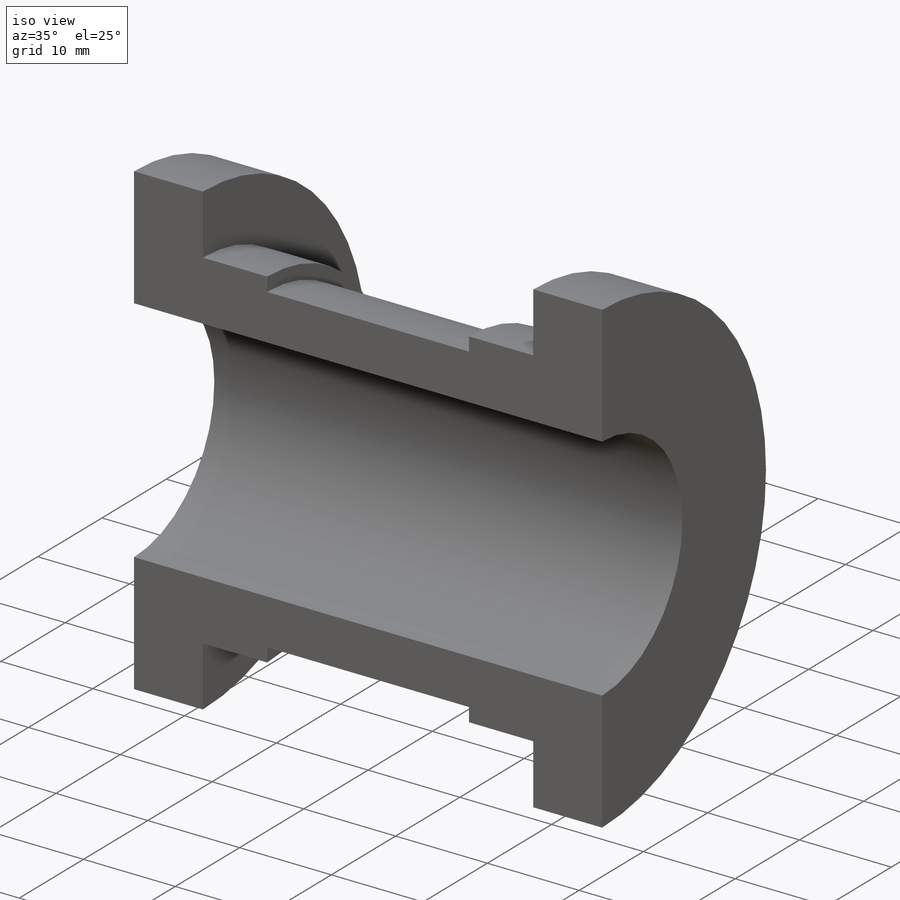
[diagram: iso view]
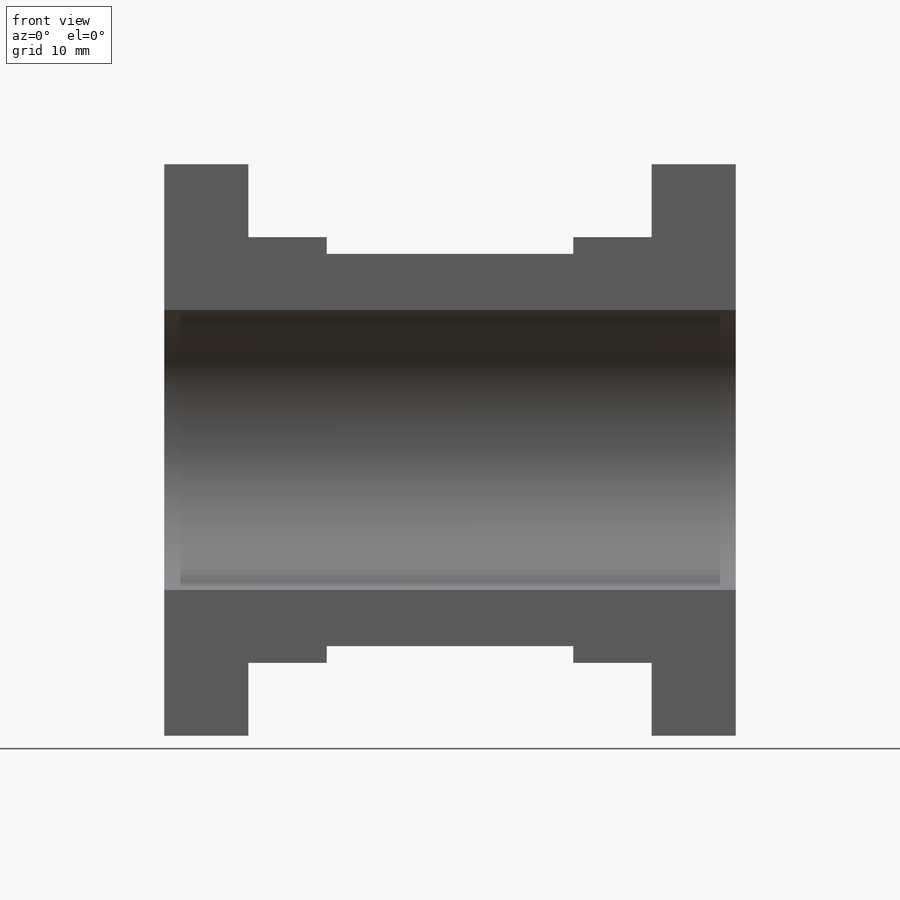
[diagram: front view]
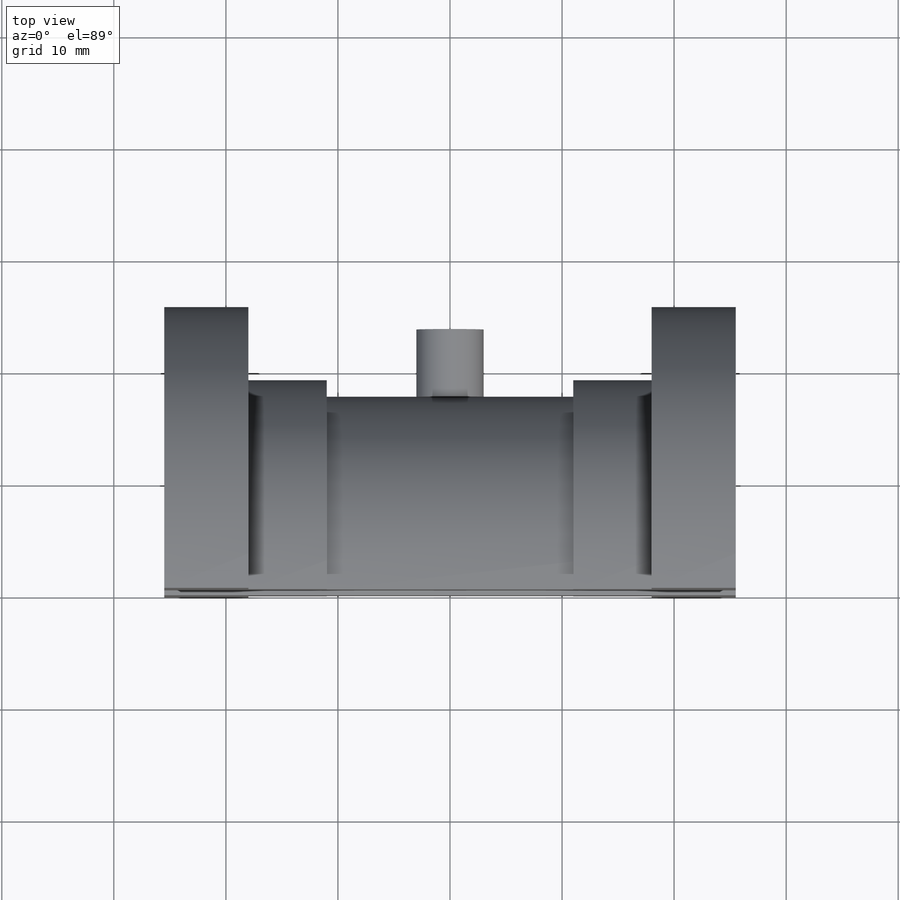
[diagram: top view]
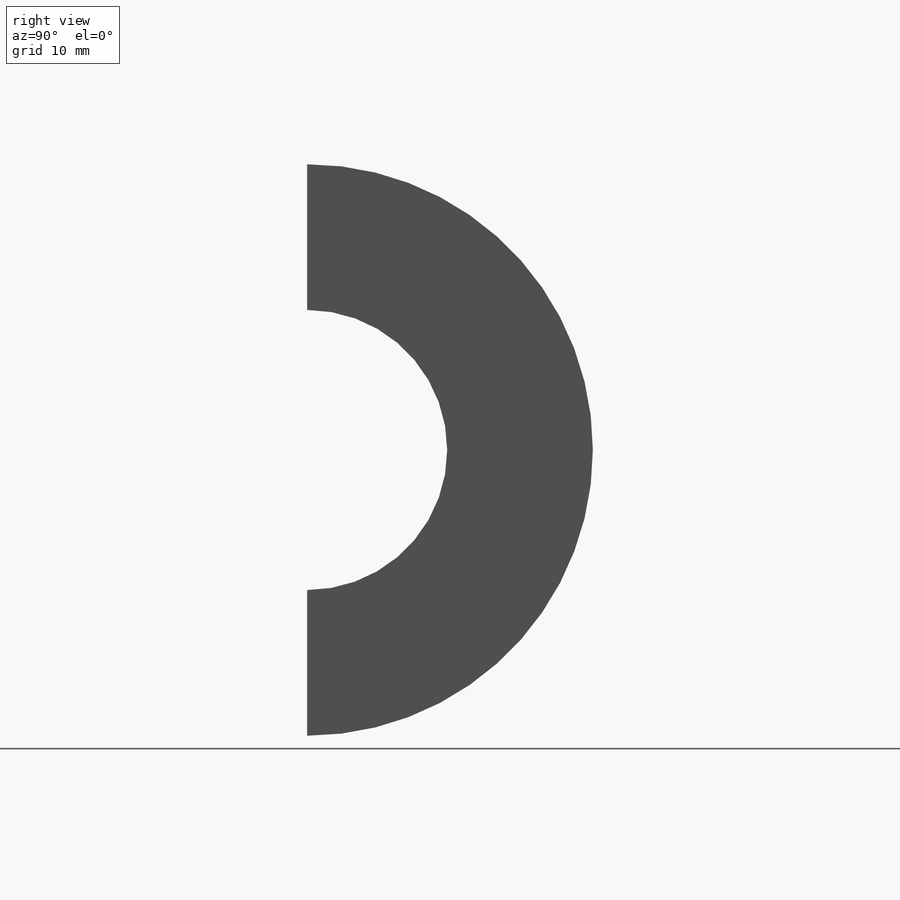
[diagram: right view]
SOLIDWORKS PART (.sldprt)
format: sldprt  version: not decoded by parser v0  size: 184,320 bytes
history: native  units: mm
features: sketch x3, material x1, revolve x1, cut_extrude x1, plane x1, extrude x1 (+12 scaffold rows collapsed)
feature tree (20):
  scaffold x12  (default folders/planes/origin — collapsed)
  material  "Material <not specified>"
  sketch  "Sketch1"  dims[c1.D1=26.5mm c1.D2=19.0mm c1.D3=17.5mm c1.D4=6.0mm c1.D5=3.0mm c1.D6=~21.764113mm c1.D7=~8.270363mm c1.D8=~16.540726mm c1.D9=~50.605468mm c2.D3=~50.605468mm c2.D4=3.0mm c2.D6=18.0mm c2.D7=~34.064742mm c3.D3=25.5mm c3.D7=18.0mm c3.D6=18.0mm c4.D7=11.0mm c4.D8=~68.339315mm c4.D1=25.5mm]
  revolve  "Revolve2"  Angle=180deg
  sketch  "Sketch2"  dims[D1=25.0mm]
  cut_extrude  "Cut-Extrude1"  [1 undecoded]
  plane  "Plane2"  Offset=17.5mm
  sketch  "Sketch3"  dims[D1=6.0mm]
  extrude  "Boss-Extrude1"  Depth=6mm
decode coverage: 5 of 6 modeling features carry decoded parameters
note: ~ marks probable driven/reference dimensions
note: 1 parameter value undecoded
note: suppression state not decoded; provenance and decode notes live in map.json
